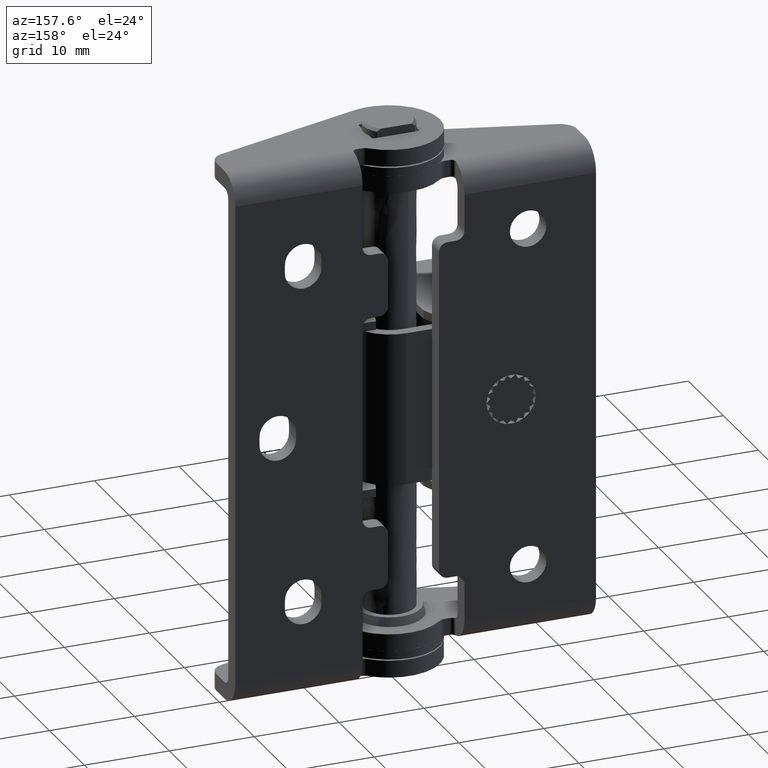
[diagram: clean part render]
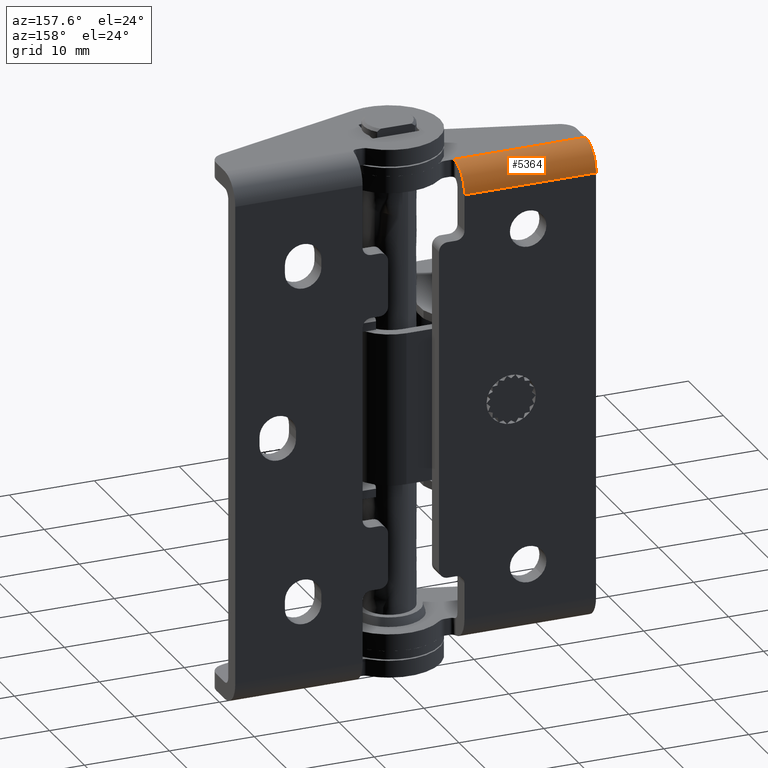
[diagram: same view with one face highlighted and labeled with its STEP entity id]
A machine part, auxiliary view. The second image highlights one B-rep face of the part: STEP entity #5364.
In plain terms, the highlighted face is a freeform B-spline surface patch.
Its self-contained STEP definition (entity closure, byte-faithful):
#4871=CARTESIAN_POINT('',(-5.499999999999799,4.0,59.750000000000000));
#4872=VERTEX_POINT('',#4871);
#5087=CARTESIAN_POINT('',(-21.500000000000000,3.999999999999895,59.750000000000000));
#5088=VERTEX_POINT('',#5087);
#5089=CARTESIAN_POINT('',(-5.499999999999799,4.0,59.750000000000000));
#5090=CARTESIAN_POINT('',(-21.500000000000000,3.999999999999895,59.750000000000000));
#5091=QUASI_UNIFORM_CURVE('',1,(#5089,#5090),.UNSPECIFIED.,.F.,.U.);
#5092=EDGE_CURVE('',#4872,#5088,#5091,.T.);
#5288=CARTESIAN_POINT('',(-21.900000000000009,3.921469155076275,59.748971974926668));
#5289=CARTESIAN_POINT('',(-5.089999999999794,3.921469155076275,59.748971974926668));
#5290=CARTESIAN_POINT('',(-21.900000000000006,7.224954401664046,59.835476780498780));
#5291=CARTESIAN_POINT('',(-5.089999999999793,7.224954401664046,59.835476780498780));
#5292=CARTESIAN_POINT('',(-21.900000000000009,6.992573438142316,56.539039773122056));
#5293=CARTESIAN_POINT('',(-5.089999999999794,6.992573438142316,56.539039773122056));
#5301=(BOUNDED_SURFACE()B_SPLINE_SURFACE(1,2,((#5288,#5290,#5292),(#5289,#5291,#5293)),.UNSPECIFIED.,.F.,.F.,.U.)B_SPLINE_SURFACE_WITH_KNOTS((2,2),(3,3),(0.0,16.810000000000219),(0.0,5.313427032265069),.UNSPECIFIED.)GEOMETRIC_REPRESENTATION_ITEM()RATIONAL_B_SPLINE_SURFACE(((1.0,0.670944223154768,0.996392648609106),(1.0,0.670944223154768,0.996392648609106)))REPRESENTATION_ITEM('')SURFACE());
#5302=CARTESIAN_POINT('',(-5.999999999999920,6.999999999999901,56.750000000000000));
#5303=VERTEX_POINT('',#5302);
#5304=CARTESIAN_POINT('',(-5.999999999999680,4.499999999920730,59.708039891563402));
#5305=VERTEX_POINT('',#5304);
#5306=CARTESIAN_POINT('',(-5.999999999999920,6.999999999999901,56.750000000000000));
#5307=CARTESIAN_POINT('',(-5.999999999999944,7.000174434405156,57.057008350613550));
#5308=CARTESIAN_POINT('',(-5.999999999999953,6.925255240613279,57.539291390906342));
#5309=CARTESIAN_POINT('',(-5.999999999999943,6.650183448877848,58.199689059134208));
#5310=CARTESIAN_POINT('',(-5.999999999999971,6.321110719103070,58.683261704668311));
#5311=CARTESIAN_POINT('',(-5.999999999999796,5.886712595694566,59.104834085889202));
#5312=CARTESIAN_POINT('',(-5.999999999999844,5.307701005098044,59.487607736615217));
#5313=CARTESIAN_POINT('',(-5.999999999999733,4.813557251032080,59.655233780430109));
#5314=CARTESIAN_POINT('',(-5.999999999999680,4.499999999920730,59.708039891563402));
#5315=B_SPLINE_CURVE_WITH_KNOTS('',3,(#5306,#5307,#5308,#5309,#5310,#5311,#5312,#5313,#5314),.UNSPECIFIED.,.F.,.U.,(4,1,1,1,1,1,4),(0.000000064454236,0.920949875951017,1.447212190115259,2.137899430251717,2.664170734550211,3.256224104999212,4.210065827495527),.UNSPECIFIED.);
#5316=EDGE_CURVE('',#5303,#5305,#5315,.T.);
#5317=ORIENTED_EDGE('',*,*,#5316,.F.);
#5318=CARTESIAN_POINT('',(-21.500000000000000,6.999999999999901,56.750000000000000));
#5319=VERTEX_POINT('',#5318);
#5320=CARTESIAN_POINT('',(-21.500000000000000,6.999999999999901,56.750000000000000));
#5321=CARTESIAN_POINT('',(-5.999999999999920,6.999999999999901,56.750000000000000));
#5322=QUASI_UNIFORM_CURVE('',1,(#5320,#5321),.UNSPECIFIED.,.F.,.U.);
#5323=EDGE_CURVE('',#5319,#5303,#5322,.T.);
#5324=ORIENTED_EDGE('',*,*,#5323,.F.);
#5325=CARTESIAN_POINT('',(-21.500000000000000,3.999999999999895,59.750000000000000));
#5326=CARTESIAN_POINT('',(-21.499999999999972,4.282270041288355,59.750124836801298));
#5327=CARTESIAN_POINT('',(-21.500000000000071,4.699438504620546,59.690648397058233));
#5328=CARTESIAN_POINT('',(-21.499999999999989,5.288761822490408,59.475695873598660));
#5329=CARTESIAN_POINT('',(-21.499999999999961,5.802295612082171,59.180658688289242));
#5330=CARTESIAN_POINT('',(-21.499999999999989,6.318681350993880,58.701008477887207));
#5331=CARTESIAN_POINT('',(-21.500000000000210,6.689494863415003,58.130945300812662));
#5332=CARTESIAN_POINT('',(-21.499999999999719,6.938262459569069,57.473992324161131));
#5333=CARTESIAN_POINT('',(-21.500000000000160,7.000098629019262,57.019988353564372));
#5334=CARTESIAN_POINT('',(-21.500000000000000,6.999999999999901,56.750000000000000));
#5335=B_SPLINE_CURVE_WITH_KNOTS('',3,(#5325,#5326,#5327,#5328,#5329,#5330,#5331,#5332,#5333,#5334),.UNSPECIFIED.,.F.,.U.,(4,1,1,1,1,1,1,4),(0.000000086816104,0.846762272614167,1.251738053018248,1.877607849076600,2.613898943309327,3.350230237328546,3.902481242665362,4.712418548631550),.UNSPECIFIED.);
#5336=EDGE_CURVE('',#5088,#5319,#5335,.T.);
#5337=ORIENTED_EDGE('',*,*,#5336,.F.);
#5338=ORIENTED_EDGE('',*,*,#5092,.F.);
#5339=CARTESIAN_POINT('',(-5.999999999999680,4.499999999920730,59.708039891563402));
#5340=CARTESIAN_POINT('',(-5.999999988729273,4.467360921525563,59.713556902757730));
#5341=CARTESIAN_POINT('',(-5.996834087701963,4.435166377743298,59.718443570766603));
#5342=CARTESIAN_POINT('',(-5.987455545311009,4.387532495814197,59.724907614863689));
#5343=CARTESIAN_POINT('',(-5.983552350985485,4.371765067695602,59.726917739502653));
#5344=CARTESIAN_POINT('',(-5.974145818752694,4.340460634926421,59.730660170061299));
#5345=CARTESIAN_POINT('',(-5.968616827431744,4.324884684817913,59.732395159447897));
#5346=CARTESIAN_POINT('',(-5.949961034519006,4.279537700994511,59.737102685853351));
#5347=CARTESIAN_POINT('',(-5.934703773419988,4.250799273385022,59.739623005222803));
#5348=CARTESIAN_POINT('',(-5.898560165685240,4.196325567797632,59.743693748584967));
#5349=CARTESIAN_POINT('',(-5.877488189713398,4.170500532049918,59.745240760758641));
#5350=CARTESIAN_POINT('',(-5.831403279181457,4.124182093002893,59.747518382615318));
#5351=CARTESIAN_POINT('',(-5.806226272324733,4.103373540071480,59.748274893793699));
#5352=CARTESIAN_POINT('',(-5.751490812741825,4.066595505466605,59.749317166655111));
#5353=CARTESIAN_POINT('',(-5.722399095621588,4.050996678093793,59.749592789692059));
#5354=CARTESIAN_POINT('',(-5.662137641866519,4.025893748152464,59.749914511941277));
#5355=CARTESIAN_POINT('',(-5.630546754897265,4.016216591329315,59.749963169190352));
#5356=CARTESIAN_POINT('',(-5.565835535769020,4.003256063925477,59.750005232034553));
#5357=CARTESIAN_POINT('',(-5.533106274943521,4.000000011315197,59.750000000018183));
#5358=CARTESIAN_POINT('',(-5.499999999999788,4.000000000000029,59.750000000000000));
#5359=B_SPLINE_CURVE_WITH_KNOTS('',3,(#5339,#5340,#5341,#5342,#5343,#5344,#5345,#5346,#5347,#5348,#5349,#5350,#5351,#5352,#5353,#5354,#5355,#5356,#5357,#5358),.UNSPECIFIED.,.F.,.U.,(4,2,2,2,2,2,2,2,2,4),(0.0,0.125000000000005,0.187500000000006,0.250000000000007,0.375000000000006,0.500000000000005,0.625000000000004,0.750000000000002,0.875000000000001,0.999999782804725),.UNSPECIFIED.);
#5360=EDGE_CURVE('',#5305,#4872,#5359,.T.);
#5361=ORIENTED_EDGE('',*,*,#5360,.F.);
#5362=EDGE_LOOP('',(#5317,#5324,#5337,#5338,#5361));
#5363=FACE_OUTER_BOUND('',#5362,.T.);
#5364=ADVANCED_FACE('',(#5363),#5301,.T.);